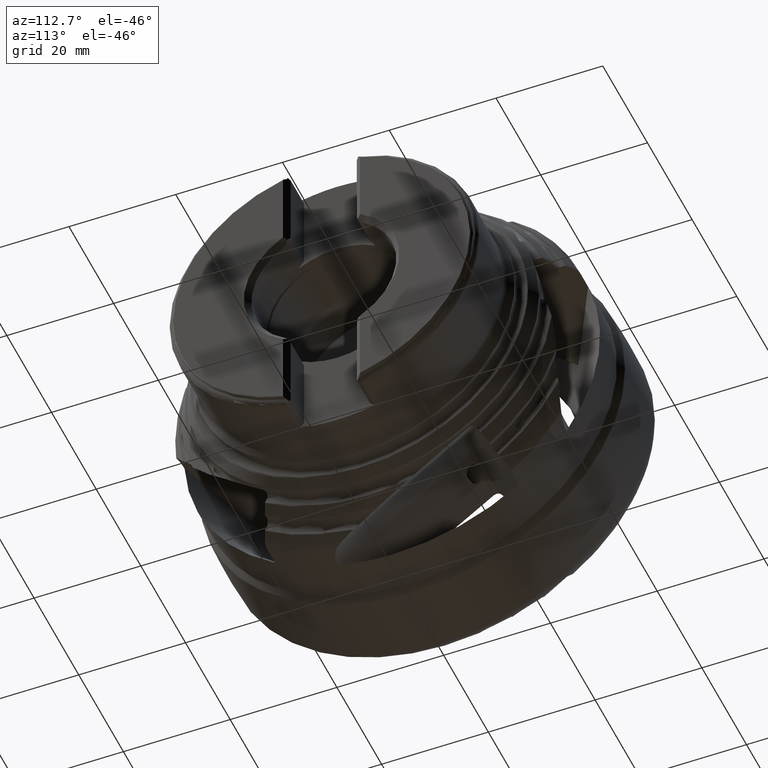
[diagram: clean part render]
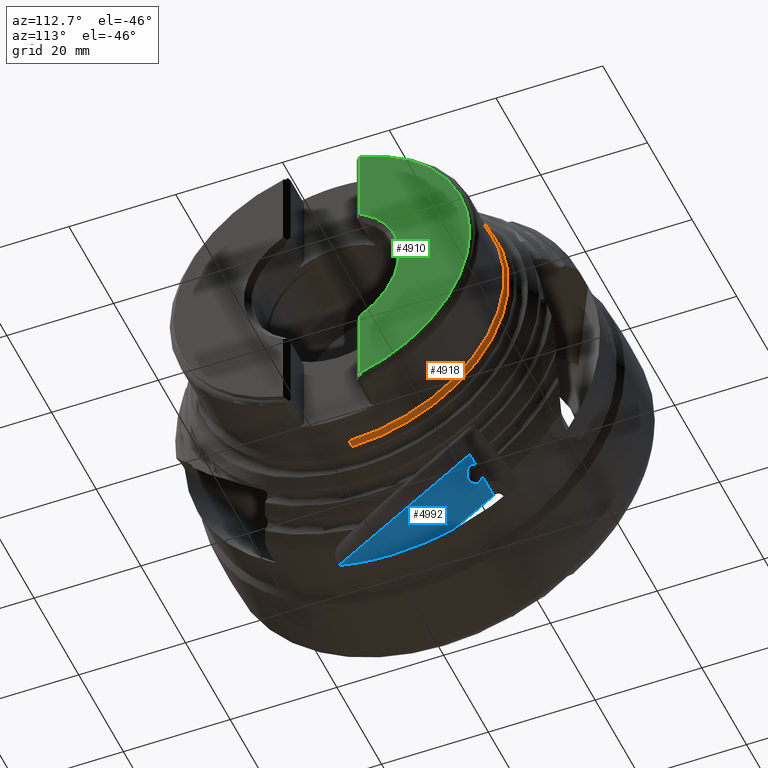
[diagram: same view with three faces highlighted in distinct colors, each labeled with its STEP entity id]
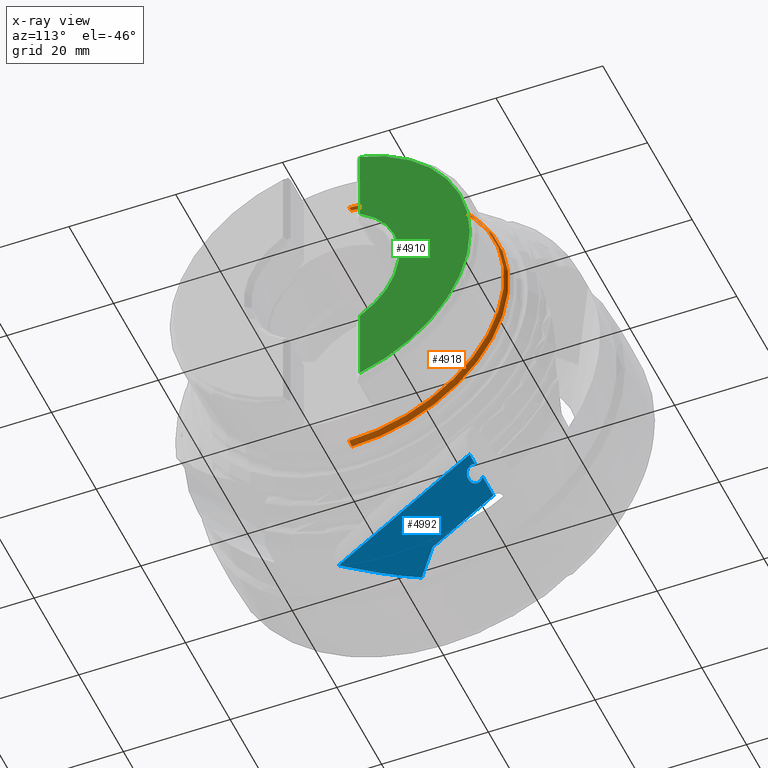
[diagram: x-ray of the same camera — body ghosted, the three highlighted faces saturated]
A machine part, auxiliary view with three faces highlighted in distinct colors.
The next image is the same camera in x-ray (body ghosted, the three faces saturated) — at least one of them is partly hidden behind the body in this view.
Their STEP definitions:

[orange] entity #4918 — the highlighted toroidal blend (fillet) surface has major radius 31 mm and minor (blend) radius 2 mm.
#287 = EDGE_CURVE ( 'NONE', #6740, #6746, #789, .T. ) ;
#301 = EDGE_CURVE ( 'NONE', #6739, #6740, #806, .T. ) ;
#306 = EDGE_CURVE ( 'NONE', #6739, #6745, #812, .T. ) ;
#425 = AXIS2_PLACEMENT_3D ( 'NONE', #1718, #1729, #1738 ) ;
#444 = AXIS2_PLACEMENT_3D ( 'NONE', #1671, #1680, #1756 ) ;
#445 = AXIS2_PLACEMENT_3D ( 'NONE', #1471, #1544, #1744 ) ;
#481 = AXIS2_PLACEMENT_3D ( 'NONE', #2256, #2248, #2124 ) ;
#789 = CIRCLE ( 'NONE', #425, 1.999999999999998200 ) ;
#806 = CIRCLE ( 'NONE', #445, 29.36166666666667900 ) ;
#812 = CIRCLE ( 'NONE', #444, 1.999999999999998200 ) ;
#873 = FACE_OUTER_BOUND ( 'NONE', #6434, .T. ) ;
#878 = TOROIDAL_SURFACE ( 'NONE', #481, 31.00000000000000000, 1.999999999999997300 ) ;
#1160 = CIRCLE ( 'NONE', #1947, 29.00000000000000000 ) ;
#1471 = CARTESIAN_POINT ( 'NONE',  ( 41.14981977665328100, 0.0000000000000000000, 0.0000000000000000000 ) ) ;
#1544 = DIRECTION ( 'NONE',  ( -1.000000000000000000, -0.0000000000000000000, -0.0000000000000000000 ) ) ;
#1671 = CARTESIAN_POINT ( 'NONE',  ( 42.29693088238320100, 0.0000000000000000000, 31.00000000000000000 ) ) ;
#1680 = DIRECTION ( 'NONE',  ( 0.0000000000000000000, -1.000000000000000000, 0.0000000000000000000 ) ) ;
#1718 = CARTESIAN_POINT ( 'NONE',  ( 42.29693088238320100, 3.796405077356795100E-015, -31.00000000000000000 ) ) ;
#1729 = DIRECTION ( 'NONE',  ( -0.0000000000000000000, 1.000000000000000000, 1.224646799147353200E-016 ) ) ;
#1738 = DIRECTION ( 'NONE',  ( 0.0000000000000000000, -1.224646799147351500E-016, 1.000000000000000000 ) ) ;
#1744 = DIRECTION ( 'NONE',  ( 0.0000000000000000000, 0.0000000000000000000, 1.000000000000000000 ) ) ;
#1756 = DIRECTION ( 'NONE',  ( 0.0000000000000000000, 0.0000000000000000000, -1.000000000000000000 ) ) ;
#1947 = AXIS2_PLACEMENT_3D ( 'NONE', #2385, #2386, #2387 ) ;
#2124 = DIRECTION ( 'NONE',  ( 0.0000000000000000000, 0.0000000000000000000, 1.000000000000000000 ) ) ;
#2248 = DIRECTION ( 'NONE',  ( -1.000000000000000000, -0.0000000000000000000, -0.0000000000000000000 ) ) ;
#2256 = CARTESIAN_POINT ( 'NONE',  ( 42.29693088238320100, 0.0000000000000000000, 0.0000000000000000000 ) ) ;
#2385 = CARTESIAN_POINT ( 'NONE',  ( 42.29693088238320100, 0.0000000000000000000, 0.0000000000000000000 ) ) ;
#2386 = DIRECTION ( 'NONE',  ( -1.000000000000000000, -0.0000000000000000000, -0.0000000000000000000 ) ) ;
#2387 = DIRECTION ( 'NONE',  ( 0.0000000000000000000, 0.0000000000000000000, 1.000000000000000000 ) ) ;
#3696 = CARTESIAN_POINT ( 'NONE',  ( 41.14981977665328100, 0.0000000000000000000, 29.36166666666667900 ) ) ;
#3697 = CARTESIAN_POINT ( 'NONE',  ( 41.14981977665328100, 3.636940321039049200E-015, -29.36166666666667900 ) ) ;
#3702 = CARTESIAN_POINT ( 'NONE',  ( 42.29693088238320100, 0.0000000000000000000, 29.00000000000000000 ) ) ;
#3703 = CARTESIAN_POINT ( 'NONE',  ( 42.29693088238320100, 3.573621413811906500E-015, -29.00000000000000000 ) ) ;
#4918 = ADVANCED_FACE ( 'NONE', ( #873 ), #878, .F. ) ;
#5081 = EDGE_CURVE ( 'NONE', #6745, #6746, #1160, .T. ) ;
#6026 = ORIENTED_EDGE ( 'NONE', *, *, #287, .F. ) ;
#6027 = ORIENTED_EDGE ( 'NONE', *, *, #301, .F. ) ;
#6028 = ORIENTED_EDGE ( 'NONE', *, *, #306, .T. ) ;
#6029 = ORIENTED_EDGE ( 'NONE', *, *, #5081, .T. ) ;
#6434 = EDGE_LOOP ( 'NONE', ( #6026, #6027, #6028, #6029 ) ) ;
#6739 = VERTEX_POINT ( 'NONE', #3696 ) ;
#6740 = VERTEX_POINT ( 'NONE', #3697 ) ;
#6745 = VERTEX_POINT ( 'NONE', #3702 ) ;
#6746 = VERTEX_POINT ( 'NONE', #3703 ) ;

[blue] entity #4992 — the highlighted planar face has unit normal (0, 0.5878, -0.809).
#191 = EDGE_CURVE ( 'NONE', #6935, #6800, #4902, .T. ) ;
#192 = EDGE_CURVE ( 'NONE', #6799, #6931, #4903, .T. ) ;
#193 = EDGE_CURVE ( 'NONE', #6830, #6937, #686, .T. ) ;
#194 = EDGE_CURVE ( 'NONE', #6717, #6931, #690, .T. ) ;
#196 = EDGE_CURVE ( 'NONE', #6935, #6937, #680, .T. ) ;
#245 = EDGE_CURVE ( 'NONE', #6831, #6830, #1447, .T. ) ;
#268 = EDGE_CURVE ( 'NONE', #6800, #6799, #5315, .T. ) ;
#680 = LINE ( 'NONE', #4717, #694 ) ;
#686 = LINE ( 'NONE', #4259, #689 ) ;
#689 = VECTOR ( 'NONE', #4723, 1000.000000000000000 ) ;
#690 = LINE ( 'NONE', #4779, #691 ) ;
#691 = VECTOR ( 'NONE', #4778, 1000.000000000000000 ) ;
#694 = VECTOR ( 'NONE', #4580, 1000.000000000000000 ) ;
#1019 = FACE_OUTER_BOUND ( 'NONE', #6376, .T. ) ;
#1277 = LINE ( 'NONE', #2891, #1278 ) ;
#1278 = VECTOR ( 'NONE', #2892, 1000.000000000000000 ) ;
#1447 = B_SPLINE_CURVE_WITH_KNOTS ( 'NONE', 3,
 ( #4473, #4660, #4661, #4664, #4586, #4637, #4658, #4604 ),
 .UNSPECIFIED., .F., .F.,
 ( 4, 2, 2, 4 ),
 ( 0.05905817330580696900, 0.06370479204968135200, 0.06835141079355575000, 0.07764464828130453200 ),
 .UNSPECIFIED. ) ;
#1618 = CARTESIAN_POINT ( 'NONE',  ( 16.96100047538758600, 14.28564049499469500, -19.90454008933564700 ) ) ;
#1670 = CARTESIAN_POINT ( 'NONE',  ( 20.73476149325805200, 13.17655995900443400, -20.71033426571556300 ) ) ;
#1674 = CARTESIAN_POINT ( 'NONE',  ( 18.79601762672997400, 11.01773693722271500, -22.27881100147706000 ) ) ;
#1678 = CARTESIAN_POINT ( 'NONE',  ( 15.02225660885951100, 12.12681747321297200, -21.47301682509714000 ) ) ;
#1880 = AXIS2_PLACEMENT_3D ( 'NONE', #4155, #4198, #4135 ) ;
#2891 = CARTESIAN_POINT ( 'NONE',  ( 12.29999999999999900, 32.87162298029322500, -6.401033389003247400 ) ) ;
#2892 = DIRECTION ( 'NONE',  ( 0.0000000000000000000, 0.8090169943749422300, 0.5877852522924802400 ) ) ;
#3034 = CARTESIAN_POINT ( 'NONE',  ( 8.590747307126550300, -0.5020675815360350300, -30.64843889866378700 ) ) ;
#3039 = CARTESIAN_POINT ( 'NONE',  ( 9.890720401802839800, 0.6451483535107278600, -29.81493773304686100 ) ) ;
#3040 = CARTESIAN_POINT ( 'NONE',  ( 11.14352592680627500, 1.833669902235529200, -28.95142628244747100 ) ) ;
#3041 = CARTESIAN_POINT ( 'NONE',  ( 12.29999999999999900, 3.069450123861264600, -28.05357939616847000 ) ) ;
#3542 = CARTESIAN_POINT ( 'NONE',  ( 12.29999999999999900, 3.069450123861264600, -28.05357939616847000 ) ) ;
#3543 = CARTESIAN_POINT ( 'NONE',  ( 12.29999999999999900, 14.48164038060326900, -19.76213783695683500 ) ) ;
#3570 = B_SPLINE_CURVE_WITH_KNOTS ( 'NONE', 3,
 ( #3034, #3039, #3040, #3041 ),
 .UNSPECIFIED., .F., .F.,
 ( 4, 4 ),
 ( 0.04225324001861254000, 0.04801565183112643100 ),
 .UNSPECIFIED. ) ;
#3756 = CARTESIAN_POINT ( 'NONE',  ( 16.96100047538758600, 14.28564049499469500, -19.90454008933564700 ) ) ;
#3757 = CARTESIAN_POINT ( 'NONE',  ( 20.73476149325805200, 13.17655995900443400, -20.71033426571556300 ) ) ;
#3787 = CARTESIAN_POINT ( 'NONE',  ( 23.00000000000000000, -10.07234737481682200, -37.60165417339276000 ) ) ;
#3788 = CARTESIAN_POINT ( 'NONE',  ( 8.590747307126550300, -0.5020675815360350300, -30.64843889866378700 ) ) ;
#3888 = CARTESIAN_POINT ( 'NONE',  ( 17.18094480857779500, 14.48164038060326300, -19.76213783695683200 ) ) ;
#3892 = CARTESIAN_POINT ( 'NONE',  ( 20.51481716006784200, 14.48164038060326500, -19.76213783695683500 ) ) ;
#3894 = CARTESIAN_POINT ( 'NONE',  ( 23.00000000000000000, 14.48164038060326500, -19.76213783695683500 ) ) ;
#4111 = PLANE ( 'NONE',  #1880 ) ;
#4135 = DIRECTION ( 'NONE',  ( 0.0000000000000000000, 0.8090169943749422300, 0.5877852522924802400 ) ) ;
#4155 = CARTESIAN_POINT ( 'NONE',  ( 23.00000000000000000, -29.61419293913423800, -51.79963605158253900 ) ) ;
#4198 = DIRECTION ( 'NONE',  ( 1.508455196501571400E-016, 0.5877852522924802400, -0.8090169943749422300 ) ) ;
#4254 = CARTESIAN_POINT ( 'NONE',  ( 17.18094480857779500, 14.48164038060326300, -19.76213783695683200 ) ) ;
#4259 = CARTESIAN_POINT ( 'NONE',  ( 23.00000000000000000, -29.61419293913423800, -51.79963605158253900 ) ) ;
#4383 = CARTESIAN_POINT ( 'NONE',  ( 20.73476149325805200, 13.17655995900443400, -20.71033426571556300 ) ) ;
#4393 = CARTESIAN_POINT ( 'NONE',  ( 21.04314004320606200, 14.09764167976515600, -20.04112922381453300 ) ) ;
#4473 = CARTESIAN_POINT ( 'NONE',  ( 8.590747307126550300, -0.5020675815360350300, -30.64843889866378700 ) ) ;
#4564 = CARTESIAN_POINT ( 'NONE',  ( 16.96100047538758600, 14.28564049499469500, -19.90454008933564700 ) ) ;
#4580 = DIRECTION ( 'NONE',  ( 1.000000000000000000, -8.866477182475791600E-017, 1.220365889222964200E-016 ) ) ;
#4586 = CARTESIAN_POINT ( 'NONE',  ( 14.39788059342802700, -4.664855462172886800, -33.67288132901182300 ) ) ;
#4604 = CARTESIAN_POINT ( 'NONE',  ( 23.00000000000000000, -10.07234737481682200, -37.60165417339276000 ) ) ;
#4637 = CARTESIAN_POINT ( 'NONE',  ( 18.02541061573217700, -7.045961054949928300, -35.40285580583577700 ) ) ;
#4658 = CARTESIAN_POINT ( 'NONE',  ( 20.49859381891607400, -8.576869559516314500, -36.51512594088837500 ) ) ;
#4660 = CARTESIAN_POINT ( 'NONE',  ( 9.711005720663433000, -1.368125070795721500, -31.27766649630849800 ) ) ;
#4661 = CARTESIAN_POINT ( 'NONE',  ( 10.86129614605908100, -2.209744554022976100, -31.88913884327100600 ) ) ;
#4664 = CARTESIAN_POINT ( 'NONE',  ( 13.20467444096453000, -3.858157875017799800, -33.08678122470431800 ) ) ;
#4717 = CARTESIAN_POINT ( 'NONE',  ( 23.00000000000000000, 14.48164038060326500, -19.76213783695683500 ) ) ;
#4723 = DIRECTION ( 'NONE',  ( 0.0000000000000000000, 0.8090169943749422300, 0.5877852522924802400 ) ) ;
#4728 = CARTESIAN_POINT ( 'NONE',  ( 20.51481716006784200, 14.48164038060326500, -19.76213783695683500 ) ) ;
#4733 = CARTESIAN_POINT ( 'NONE',  ( 21.12511544273924400, 13.61122546966446300, -20.39453128676387900 ) ) ;
#4750 = CARTESIAN_POINT ( 'NONE',  ( 17.09674958100642100, 14.42044511718379400, -19.80659879834356500 ) ) ;
#4778 = DIRECTION ( 'NONE',  ( 1.000000000000000000, -8.866477182475791600E-017, 1.220365889222964200E-016 ) ) ;
#4779 = CARTESIAN_POINT ( 'NONE',  ( 23.00000000000000000, 14.48164038060326500, -19.76213783695683500 ) ) ;
#4789 = CARTESIAN_POINT ( 'NONE',  ( 17.02320853159505300, 14.35491018357995000, -19.85421271467677300 ) ) ;
#4902 =( BOUNDED_CURVE ( )  B_SPLINE_CURVE ( 3, ( #4728, #4393, #4733, #4383 ),
 .UNSPECIFIED., .F., .F. ) 
 B_SPLINE_CURVE_WITH_KNOTS ( ( 4, 4 ),
 ( 2.474786905002498200, 3.616174236258444400 ),
 .UNSPECIFIED. ) 
 CURVE ( )  GEOMETRIC_REPRESENTATION_ITEM ( )  RATIONAL_B_SPLINE_CURVE ( ( 1.000000000000000000, 0.8943509656258312700, 0.8943509656258312700, 1.000000000000000000 ) ) 
 REPRESENTATION_ITEM ( '' )  );
#4903 =( BOUNDED_CURVE ( )  B_SPLINE_CURVE ( 3, ( #4564, #4789, #4750, #4254 ),
 .UNSPECIFIED., .F., .T. ) 
 B_SPLINE_CURVE_WITH_KNOTS ( ( 4, 4 ),
 ( 0.4745815826686520800, 0.6668057485872954700 ),
 .UNSPECIFIED. ) 
 CURVE ( )  GEOMETRIC_REPRESENTATION_ITEM ( )  RATIONAL_B_SPLINE_CURVE ( ( 1.000000000000000000, 0.9969231921068404400, 0.9969231921068404400, 1.000000000000000000 ) ) 
 REPRESENTATION_ITEM ( '' )  );
#4992 = ADVANCED_FACE ( 'NONE', ( #1019 ), #4111, .T. ) ;
#5200 = EDGE_CURVE ( 'NONE', #6716, #6717, #1277, .T. ) ;
#5241 = EDGE_CURVE ( 'NONE', #6831, #6716, #3570, .T. ) ;
#5315 =( BOUNDED_CURVE ( )  B_SPLINE_CURVE ( 3, ( #1670, #1674, #1678, #1618 ),
 .UNSPECIFIED., .F., .T. ) 
 B_SPLINE_CURVE_WITH_KNOTS ( ( 4, 4 ),
 ( 3.616174236258444400, 6.757766889848237900 ),
 .UNSPECIFIED. ) 
 CURVE ( )  GEOMETRIC_REPRESENTATION_ITEM ( )  RATIONAL_B_SPLINE_CURVE ( ( 1.000000000000000000, 0.3333333333333332000, 0.3333333333333332000, 1.000000000000000000 ) ) 
 REPRESENTATION_ITEM ( '' )  );
#6376 = EDGE_LOOP ( 'NONE', ( #6600, #6601, #6602, #6603, #6604, #6605, #6606, #6607, #6608 ) ) ;
#6600 = ORIENTED_EDGE ( 'NONE', *, *, #245, .F. ) ;
#6601 = ORIENTED_EDGE ( 'NONE', *, *, #5241, .T. ) ;
#6602 = ORIENTED_EDGE ( 'NONE', *, *, #5200, .T. ) ;
#6603 = ORIENTED_EDGE ( 'NONE', *, *, #194, .T. ) ;
#6604 = ORIENTED_EDGE ( 'NONE', *, *, #192, .F. ) ;
#6605 = ORIENTED_EDGE ( 'NONE', *, *, #268, .F. ) ;
#6606 = ORIENTED_EDGE ( 'NONE', *, *, #191, .F. ) ;
#6607 = ORIENTED_EDGE ( 'NONE', *, *, #196, .T. ) ;
#6608 = ORIENTED_EDGE ( 'NONE', *, *, #193, .F. ) ;
#6716 = VERTEX_POINT ( 'NONE', #3542 ) ;
#6717 = VERTEX_POINT ( 'NONE', #3543 ) ;
#6799 = VERTEX_POINT ( 'NONE', #3756 ) ;
#6800 = VERTEX_POINT ( 'NONE', #3757 ) ;
#6830 = VERTEX_POINT ( 'NONE', #3787 ) ;
#6831 = VERTEX_POINT ( 'NONE', #3788 ) ;
#6931 = VERTEX_POINT ( 'NONE', #3888 ) ;
#6935 = VERTEX_POINT ( 'NONE', #3892 ) ;
#6937 = VERTEX_POINT ( 'NONE', #3894 ) ;

[green] entity #4910 — the highlighted planar face has unit normal (-1, 0, -0).
#65 = EDGE_CURVE ( 'NONE', #7163, #7161, #6644, .T. ) ;
#69 = EDGE_CURVE ( 'NONE', #7163, #7158, #6647, .T. ) ;
#70 = EDGE_CURVE ( 'NONE', #7158, #7156, #6652, .T. ) ;
#71 = EDGE_CURVE ( 'NONE', #7156, #7161, #6651, .T. ) ;
#349 = AXIS2_PLACEMENT_3D ( 'NONE', #7307, #7303, #7302 ) ;
#357 = AXIS2_PLACEMENT_3D ( 'NONE', #7289, #7288, #7287 ) ;
#473 = AXIS2_PLACEMENT_3D ( 'NONE', #1856, #1858, #1852 ) ;
#858 = FACE_OUTER_BOUND ( 'NONE', #6465, .T. ) ;
#1852 = DIRECTION ( 'NONE',  ( -0.0000000000000000000, 0.0000000000000000000, 1.000000000000000000 ) ) ;
#1854 = PLANE ( 'NONE',  #473 ) ;
#1856 = CARTESIAN_POINT ( 'NONE',  ( 54.72299999999999900, 27.78999999999999900, 0.0000000000000000000 ) ) ;
#1858 = DIRECTION ( 'NONE',  ( -1.000000000000000000, 0.0000000000000000000, -0.0000000000000000000 ) ) ;
#4014 = CARTESIAN_POINT ( 'NONE',  ( 54.72299999999997800, 7.199999999999975300, -26.84108976923254600 ) ) ;
#4016 = CARTESIAN_POINT ( 'NONE',  ( 54.72299999999997800, 7.199999999999975300, 26.84108976923254600 ) ) ;
#4019 = CARTESIAN_POINT ( 'NONE',  ( 54.72299999999997800, 7.199999999999973500, -12.67243563802948400 ) ) ;
#4021 = CARTESIAN_POINT ( 'NONE',  ( 54.72299999999997800, 7.199999999999973500, 12.67243563802948400 ) ) ;
#4910 = ADVANCED_FACE ( 'NONE', ( #858 ), #1854, .F. ) ;
#5994 = ORIENTED_EDGE ( 'NONE', *, *, #70, .F. ) ;
#5995 = ORIENTED_EDGE ( 'NONE', *, *, #69, .F. ) ;
#5996 = ORIENTED_EDGE ( 'NONE', *, *, #65, .T. ) ;
#5997 = ORIENTED_EDGE ( 'NONE', *, *, #71, .F. ) ;
#6465 = EDGE_LOOP ( 'NONE', ( #5994, #5995, #5996, #5997 ) ) ;
#6643 = VECTOR ( 'NONE', #7284, 1000.000000000000000 ) ;
#6644 = CIRCLE ( 'NONE', #349, 14.57500000000000300 ) ;
#6645 = VECTOR ( 'NONE', #7290, 1000.000000000000000 ) ;
#6647 = LINE ( 'NONE', #7298, #6645 ) ;
#6651 = LINE ( 'NONE', #7291, #6643 ) ;
#6652 = CIRCLE ( 'NONE', #357, 27.78999999999999900 ) ;
#7156 = VERTEX_POINT ( 'NONE', #4014 ) ;
#7158 = VERTEX_POINT ( 'NONE', #4016 ) ;
#7161 = VERTEX_POINT ( 'NONE', #4019 ) ;
#7163 = VERTEX_POINT ( 'NONE', #4021 ) ;
#7284 = DIRECTION ( 'NONE',  ( -0.0000000000000000000, -0.0000000000000000000, 1.000000000000000000 ) ) ;
#7287 = DIRECTION ( 'NONE',  ( 0.0000000000000000000, 0.0000000000000000000, 1.000000000000000000 ) ) ;
#7288 = DIRECTION ( 'NONE',  ( -1.000000000000000000, -0.0000000000000000000, -0.0000000000000000000 ) ) ;
#7289 = CARTESIAN_POINT ( 'NONE',  ( 54.72299999999999900, 0.0000000000000000000, 0.0000000000000000000 ) ) ;
#7290 = DIRECTION ( 'NONE',  ( -0.0000000000000000000, -0.0000000000000000000, 1.000000000000000000 ) ) ;
#7291 = CARTESIAN_POINT ( 'NONE',  ( 54.72299999999997800, 7.199999999999977100, -29.00000000000000000 ) ) ;
#7298 = CARTESIAN_POINT ( 'NONE',  ( 54.72299999999997800, 7.199999999999977100, -29.00000000000000000 ) ) ;
#7302 = DIRECTION ( 'NONE',  ( 0.0000000000000000000, 0.0000000000000000000, 1.000000000000000000 ) ) ;
#7303 = DIRECTION ( 'NONE',  ( -1.000000000000000000, -0.0000000000000000000, -0.0000000000000000000 ) ) ;
#7307 = CARTESIAN_POINT ( 'NONE',  ( 54.72299999999999900, 0.0000000000000000000, 0.0000000000000000000 ) ) ;